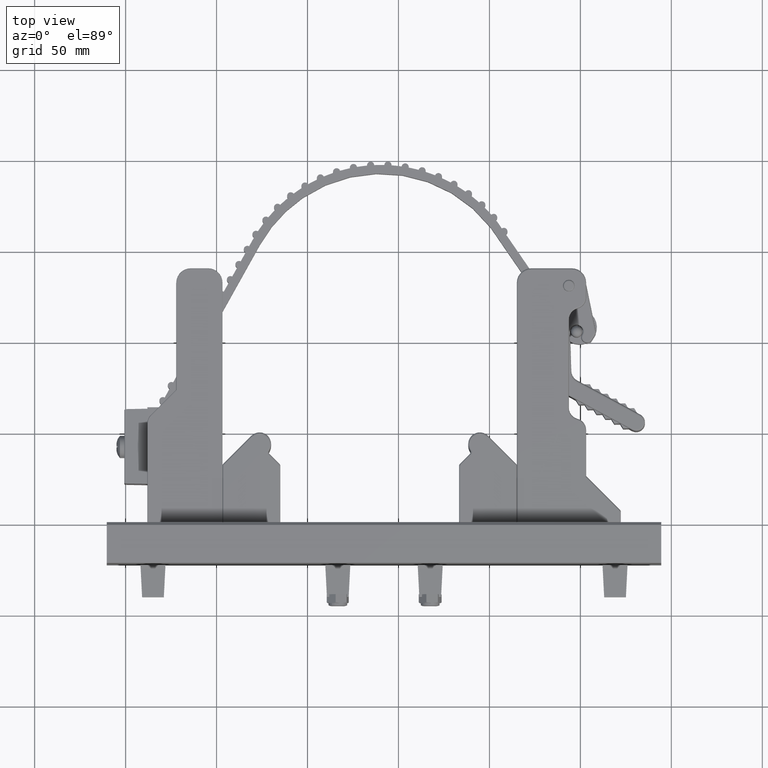
[diagram: clean part render]
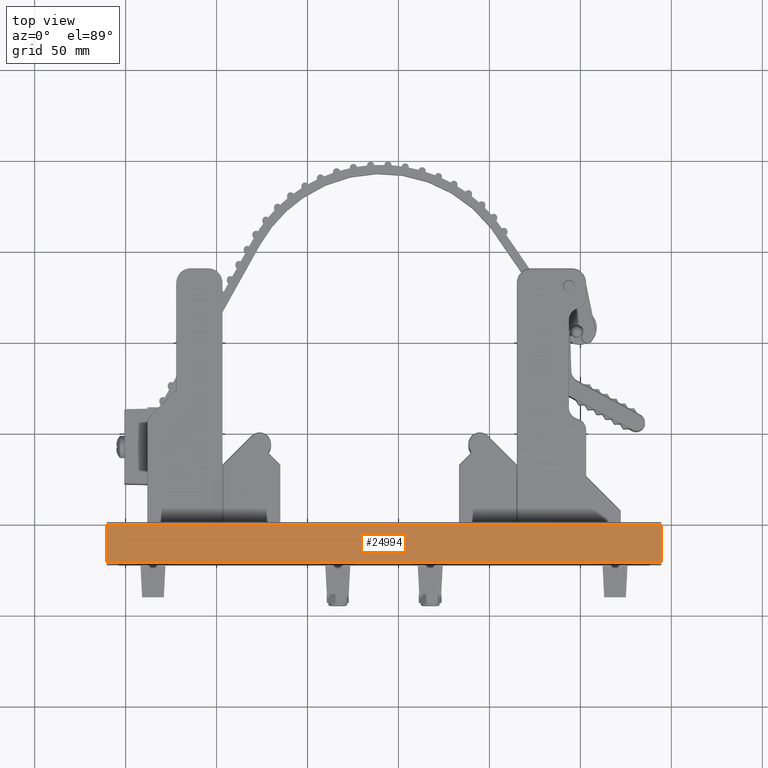
[diagram: same view with one face highlighted and labeled with its STEP entity id]
A machine part, top view. The second image highlights one B-rep face of the part: STEP entity #24994.
In plain terms, the highlighted planar face has unit normal (0, 0, 1).
Its self-contained STEP definition (entity closure, byte-faithful):
#24599 = EDGE_CURVE ( 'NONE', #65802, #65800, #49626, .T. ) ;
#24603 = EDGE_CURVE ( 'NONE', #65800, #65799, #49610, .T. ) ;
#24606 = EDGE_CURVE ( 'NONE', #65802, #65801, #49621, .T. ) ;
#24607 = EDGE_CURVE ( 'NONE', #65801, #65799, #49655, .T. ) ;
#24994 = ADVANCED_FACE ( 'NONE', ( #59060 ), #60575, .T. ) ;
#34028 = EDGE_LOOP ( 'NONE', ( #35076, #35074, #35172, #35151 ) ) ;
#35074 = ORIENTED_EDGE ( 'NONE', *, *, #24606, .F. ) ;
#35076 = ORIENTED_EDGE ( 'NONE', *, *, #24607, .F. ) ;
#35151 = ORIENTED_EDGE ( 'NONE', *, *, #24603, .T. ) ;
#35172 = ORIENTED_EDGE ( 'NONE', *, *, #24599, .T. ) ;
#45125 = AXIS2_PLACEMENT_3D ( 'NONE', #60566, #60584, #60586 ) ;
#49610 = LINE ( 'NONE', #55103, #49641 ) ;
#49621 = LINE ( 'NONE', #55109, #49651 ) ;
#49626 = LINE ( 'NONE', #55101, #49628 ) ;
#49628 = VECTOR ( 'NONE', #55102, 39.37007874015748100 ) ;
#49641 = VECTOR ( 'NONE', #55110, 39.37007874015748100 ) ;
#49651 = VECTOR ( 'NONE', #55117, 39.37007874015748100 ) ;
#49655 = LINE ( 'NONE', #55118, #49656 ) ;
#49656 = VECTOR ( 'NONE', #55119, 39.37007874015748100 ) ;
#55101 = CARTESIAN_POINT ( 'NONE',  ( 1.875000000000042600, 0.8140906240363022800, -6.000000000000000900 ) ) ;
#55102 = DIRECTION ( 'NONE',  ( -4.865772278734058500E-014, 1.000000000000000000, -0.0000000000000000000 ) ) ;
#55103 = CARTESIAN_POINT ( 'NONE',  ( 1.875000000000042600, 0.8140906240363022800, -6.000000000000000900 ) ) ;
#55109 = CARTESIAN_POINT ( 'NONE',  ( 1.875000000000082400, -6.610187530754785200E-015, -6.000000000000000900 ) ) ;
#55110 = DIRECTION ( 'NONE',  ( 0.0000000000000000000, 0.0000000000000000000, 1.000000000000000000 ) ) ;
#55117 = DIRECTION ( 'NONE',  ( 0.0000000000000000000, 0.0000000000000000000, 1.000000000000000000 ) ) ;
#55118 = CARTESIAN_POINT ( 'NONE',  ( 1.875000000000042600, 0.8140906240363022800, 6.000000000000000900 ) ) ;
#55119 = DIRECTION ( 'NONE',  ( -4.865772278734058500E-014, 1.000000000000000000, -0.0000000000000000000 ) ) ;
#59060 = FACE_OUTER_BOUND ( 'NONE', #34028, .T. ) ;
#60566 = CARTESIAN_POINT ( 'NONE',  ( 1.875000000000042600, 0.8140906240363022800, -6.000000000000000900 ) ) ;
#60575 = PLANE ( 'NONE',  #45125 ) ;
#60584 = DIRECTION ( 'NONE',  ( 1.000000000000000000, 4.865772278734058500E-014, -0.0000000000000000000 ) ) ;
#60586 = DIRECTION ( 'NONE',  ( -4.865772278734058500E-014, 1.000000000000000000, 0.0000000000000000000 ) ) ;
#65799 = VERTEX_POINT ( 'NONE', #82402 ) ;
#65800 = VERTEX_POINT ( 'NONE', #82404 ) ;
#65801 = VERTEX_POINT ( 'NONE', #82406 ) ;
#65802 = VERTEX_POINT ( 'NONE', #82408 ) ;
#82402 = CARTESIAN_POINT ( 'NONE',  ( 1.875000000000042600, 0.8140906240363022800, 6.000000000000000900 ) ) ;
#82404 = CARTESIAN_POINT ( 'NONE',  ( 1.875000000000042600, 0.8140906240363022800, -6.000000000000000900 ) ) ;
#82406 = CARTESIAN_POINT ( 'NONE',  ( 1.875000000000082400, -6.610187530754785200E-015, 6.000000000000000900 ) ) ;
#82408 = CARTESIAN_POINT ( 'NONE',  ( 1.875000000000082400, -6.610187530754785200E-015, -6.000000000000000900 ) ) ;